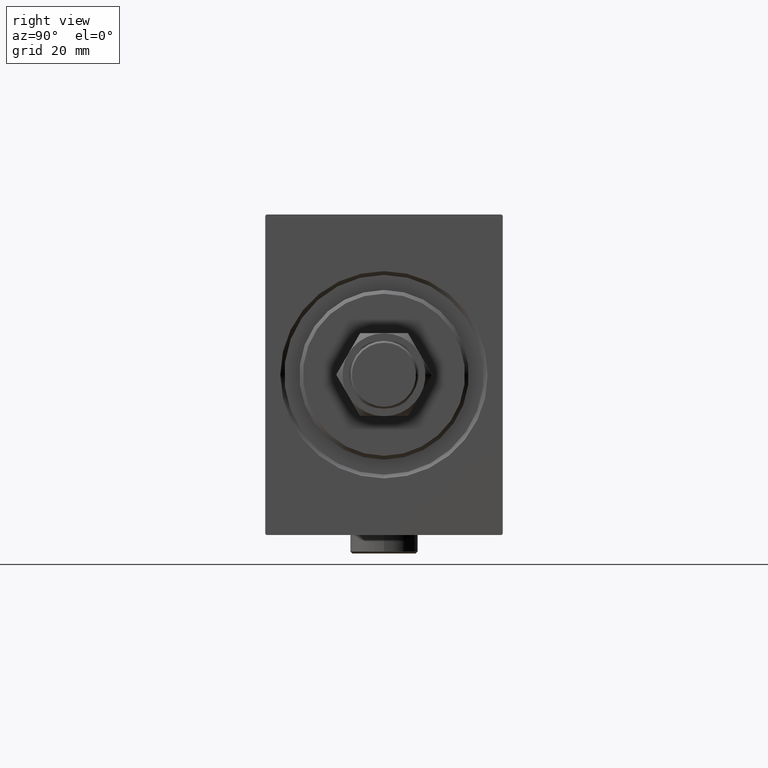
[diagram: clean part render]
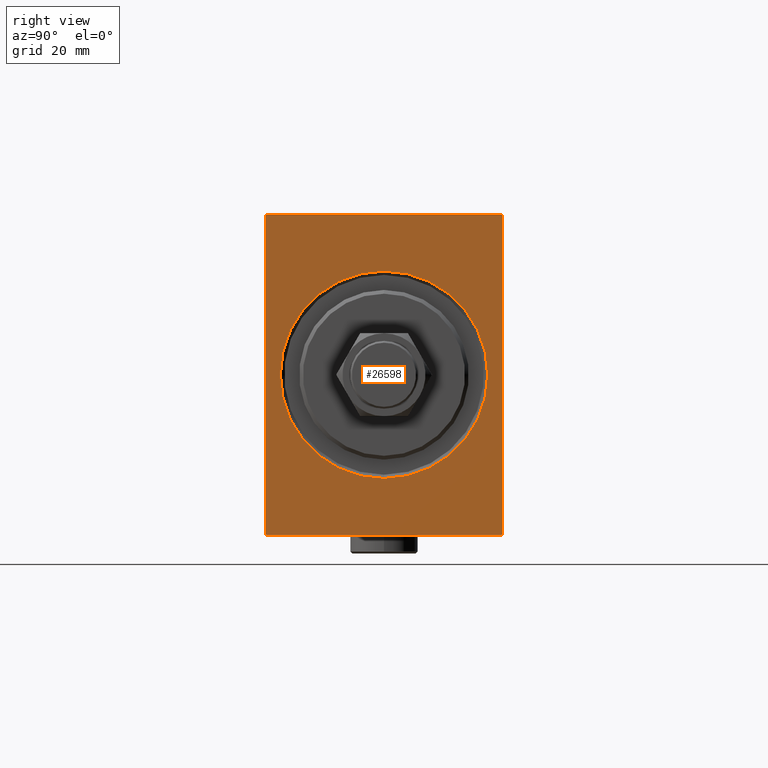
[diagram: same view with one face highlighted and labeled with its STEP entity id]
A machine part, right view. The second image highlights one B-rep face of the part: STEP entity #26598.
In plain terms, the highlighted planar face has unit normal (-1, 0, 0).
Its self-contained STEP definition (entity closure, byte-faithful):
#85 = VERTEX_POINT ( 'NONE', #24927 ) ;
#172 = EDGE_LOOP ( 'NONE', ( #3358, #2663 ) ) ;
#1184 = ORIENTED_EDGE ( 'NONE', *, *, #7501, .T. ) ;
#1701 = ORIENTED_EDGE ( 'NONE', *, *, #9260, .F. ) ;
#1741 = EDGE_CURVE ( 'NONE', #23585, #18086, #23955, .T. ) ;
#2020 = CARTESIAN_POINT ( 'NONE',  ( 0.000000000000000000, 31.50000000000001421, -42.50000000000000711 ) ) ;
#2246 = DIRECTION ( 'NONE',  ( 0.000000000000000000, -1.632680918566406300E-16, 1.000000000000000000 ) ) ;
#2663 = ORIENTED_EDGE ( 'NONE', *, *, #31096, .T. ) ;
#2672 = LINE ( 'NONE', #31060, #2770 ) ;
#2770 = VECTOR ( 'NONE', #10570, 1000.000000000000114 ) ;
#2815 = VERTEX_POINT ( 'NONE', #8712 ) ;
#3127 = DIRECTION ( 'NONE',  ( 1.000000000000000000, 0.000000000000000000, 0.000000000000000000 ) ) ;
#3358 = ORIENTED_EDGE ( 'NONE', *, *, #4529, .T. ) ;
#3590 = FACE_OUTER_BOUND ( 'NONE', #17843, .T. ) ;
#4210 = AXIS2_PLACEMENT_3D ( 'NONE', #13475, #26986, #45563 ) ;
#4529 = EDGE_CURVE ( 'NONE', #30413, #26801, #32434, .T. ) ;
#6541 = LINE ( 'NONE', #20715, #39100 ) ;
#6778 = DIRECTION ( 'NONE',  ( 1.000000000000000000, 0.000000000000000000, 0.000000000000000000 ) ) ;
#7501 = EDGE_CURVE ( 'NONE', #2815, #20377, #2672, .T. ) ;
#8712 = CARTESIAN_POINT ( 'NONE',  ( 0.000000000000000000, 31.19999999999997797, 42.50000000000000000 ) ) ;
#8959 = CARTESIAN_POINT ( 'NONE',  ( 0.000000000000000000, 0.000000000000000000, 0.000000000000000000 ) ) ;
#9260 = EDGE_CURVE ( 'NONE', #40228, #40571, #21153, .T. ) ;
#10101 = FACE_BOUND ( 'NONE', #172, .T. ) ;
#10316 = EDGE_CURVE ( 'NONE', #43932, #40571, #11771, .T. ) ;
#10570 = DIRECTION ( 'NONE',  ( -0.000000000000000000, 0.7071067811865556774, -0.7071067811865393571 ) ) ;
#10962 = LINE ( 'NONE', #35849, #12485 ) ;
#11071 = VECTOR ( 'NONE', #2246, 1000.000000000000000 ) ;
#11410 = ORIENTED_EDGE ( 'NONE', *, *, #31975, .T. ) ;
#11771 = LINE ( 'NONE', #32719, #22064 ) ;
#12485 = VECTOR ( 'NONE', #25147, 1000.000000000000000 ) ;
#13390 = CARTESIAN_POINT ( 'NONE',  ( 0.000000000000000000, -31.19999999999997087, -42.50000000000000711 ) ) ;
#13475 = CARTESIAN_POINT ( 'NONE',  ( 0.000000000000000000, 0.000000000000000000, 0.000000000000000000 ) ) ;
#13975 = CARTESIAN_POINT ( 'NONE',  ( 0.000000000000000000, -31.49999999999999289, 42.19999999999996732 ) ) ;
#15586 = CARTESIAN_POINT ( 'NONE',  ( 0.000000000000000000, 31.19999999999998508, -42.50000000000000711 ) ) ;
#17662 = VECTOR ( 'NONE', #34088, 1000.000000000000114 ) ;
#17843 = EDGE_LOOP ( 'NONE', ( #21238, #1184, #24580, #43601, #1701, #11410, #37977, #23305 ) ) ;
#18086 = VERTEX_POINT ( 'NONE', #38596 ) ;
#20377 = VERTEX_POINT ( 'NONE', #32725 ) ;
#20483 = DIRECTION ( 'NONE',  ( 0.000000000000000000, -1.000000000000000000, -2.202823461557850341E-16 ) ) ;
#20715 = CARTESIAN_POINT ( 'NONE',  ( 0.000000000000000000, 31.50000000000000000, 42.50000000000000000 ) ) ;
#21153 = LINE ( 'NONE', #24883, #45806 ) ;
#21238 = ORIENTED_EDGE ( 'NONE', *, *, #28569, .F. ) ;
#21387 = DIRECTION ( 'NONE',  ( 0.000000000000000000, 1.000000000000000000, 0.000000000000000000 ) ) ;
#22064 = VECTOR ( 'NONE', #28754, 1000.000000000000114 ) ;
#22822 = AXIS2_PLACEMENT_3D ( 'NONE', #8959, #6778, #23134 ) ;
#23134 = DIRECTION ( 'NONE',  ( 0.000000000000000000, 0.000000000000000000, -1.000000000000000000 ) ) ;
#23305 = ORIENTED_EDGE ( 'NONE', *, *, #1741, .T. ) ;
#23366 = CARTESIAN_POINT ( 'NONE',  ( 0.000000000000000000, -31.19999999999997087, -42.50000000000000711 ) ) ;
#23585 = VERTEX_POINT ( 'NONE', #13975 ) ;
#23955 = LINE ( 'NONE', #41879, #26434 ) ;
#24279 = PLANE ( 'NONE',  #36096 ) ;
#24580 = ORIENTED_EDGE ( 'NONE', *, *, #40148, .F. ) ;
#24883 = CARTESIAN_POINT ( 'NONE',  ( 0.000000000000000000, -31.49999999999999289, -42.50000000000000711 ) ) ;
#24927 = CARTESIAN_POINT ( 'NONE',  ( 0.000000000000000000, -31.49999999999999289, -42.19999999999998153 ) ) ;
#25147 = DIRECTION ( 'NONE',  ( 0.000000000000000000, 0.000000000000000000, -1.000000000000000000 ) ) ;
#25738 = CARTESIAN_POINT ( 'NONE',  ( 0.000000000000000000, 0.000000000000000000, 27.50000000000003908 ) ) ;
#26434 = VECTOR ( 'NONE', #31189, 1000.000000000000114 ) ;
#26598 = ADVANCED_FACE ( 'NONE', ( #10101, #3590 ), #24279, .F. ) ;
#26801 = VERTEX_POINT ( 'NONE', #40340 ) ;
#26986 = DIRECTION ( 'NONE',  ( 1.000000000000000000, 0.000000000000000000, 0.000000000000000000 ) ) ;
#28569 = EDGE_CURVE ( 'NONE', #2815, #18086, #6541, .T. ) ;
#28754 = DIRECTION ( 'NONE',  ( 0.000000000000000000, -0.7071067811865556774, -0.7071067811865392461 ) ) ;
#30413 = VERTEX_POINT ( 'NONE', #25738 ) ;
#31060 = CARTESIAN_POINT ( 'NONE',  ( 0.000000000000000000, 31.19999999999997797, 42.50000000000000000 ) ) ;
#31096 = EDGE_CURVE ( 'NONE', #26801, #30413, #45120, .T. ) ;
#31189 = DIRECTION ( 'NONE',  ( -0.000000000000000000, 0.7071067811865393571, 0.7071067811865556774 ) ) ;
#31975 = EDGE_CURVE ( 'NONE', #40228, #85, #41292, .T. ) ;
#32434 = CIRCLE ( 'NONE', #4210, 27.50000000000003908 ) ;
#32509 = EDGE_CURVE ( 'NONE', #23585, #85, #10962, .T. ) ;
#32719 = CARTESIAN_POINT ( 'NONE',  ( 0.000000000000000000, 31.50000000000001421, -42.19999999999998863 ) ) ;
#32725 = CARTESIAN_POINT ( 'NONE',  ( 0.000000000000000000, 31.50000000000000000, 42.19999999999998863 ) ) ;
#33889 = LINE ( 'NONE', #2020, #11071 ) ;
#34088 = DIRECTION ( 'NONE',  ( -0.000000000000000000, -0.7071067811865392461, 0.7071067811865556774 ) ) ;
#35687 = DIRECTION ( 'NONE',  ( 0.000000000000000000, 0.000000000000000000, -1.000000000000000000 ) ) ;
#35849 = CARTESIAN_POINT ( 'NONE',  ( 0.000000000000000000, -31.49999999999999289, 42.49999999999998579 ) ) ;
#36096 = AXIS2_PLACEMENT_3D ( 'NONE', #38486, #3127, #35687 ) ;
#37977 = ORIENTED_EDGE ( 'NONE', *, *, #32509, .F. ) ;
#38486 = CARTESIAN_POINT ( 'NONE',  ( 0.000000000000000000, 0.000000000000000000, 0.000000000000000000 ) ) ;
#38596 = CARTESIAN_POINT ( 'NONE',  ( 0.000000000000000000, -31.19999999999997797, 42.49999999999998579 ) ) ;
#39100 = VECTOR ( 'NONE', #20483, 1000.000000000000000 ) ;
#40148 = EDGE_CURVE ( 'NONE', #43932, #20377, #33889, .T. ) ;
#40228 = VERTEX_POINT ( 'NONE', #13390 ) ;
#40340 = CARTESIAN_POINT ( 'NONE',  ( 0.000000000000000000, 3.367778697655226041E-15, -27.50000000000003908 ) ) ;
#40571 = VERTEX_POINT ( 'NONE', #15586 ) ;
#41292 = LINE ( 'NONE', #23366, #17662 ) ;
#41879 = CARTESIAN_POINT ( 'NONE',  ( 0.000000000000000000, -31.49999999999999289, 42.19999999999996732 ) ) ;
#43601 = ORIENTED_EDGE ( 'NONE', *, *, #10316, .T. ) ;
#43932 = VERTEX_POINT ( 'NONE', #45871 ) ;
#45120 = CIRCLE ( 'NONE', #22822, 27.50000000000003908 ) ;
#45563 = DIRECTION ( 'NONE',  ( 0.000000000000000000, 0.000000000000000000, -1.000000000000000000 ) ) ;
#45806 = VECTOR ( 'NONE', #21387, 1000.000000000000000 ) ;
#45871 = CARTESIAN_POINT ( 'NONE',  ( 0.000000000000000000, 31.50000000000001421, -42.19999999999998863 ) ) ;